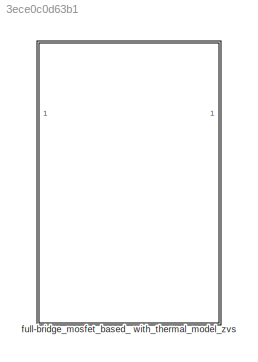
MODEL slx_3ece0c0d63b1
KIND library
CONFIG AbsTol = auto
CONFIG EnableMultiTasking = off
CONFIG FixedStep = auto
CONFIG MaxStep = auto
CONFIG MinStep = auto
CONFIG RelTol = 1e-3
CONFIG SampleTimeConstraint = Unconstrained
CONFIG SolverName = VariableStepAuto
CONFIG StartTime = 0.0
CONFIG StopTime = 10.0
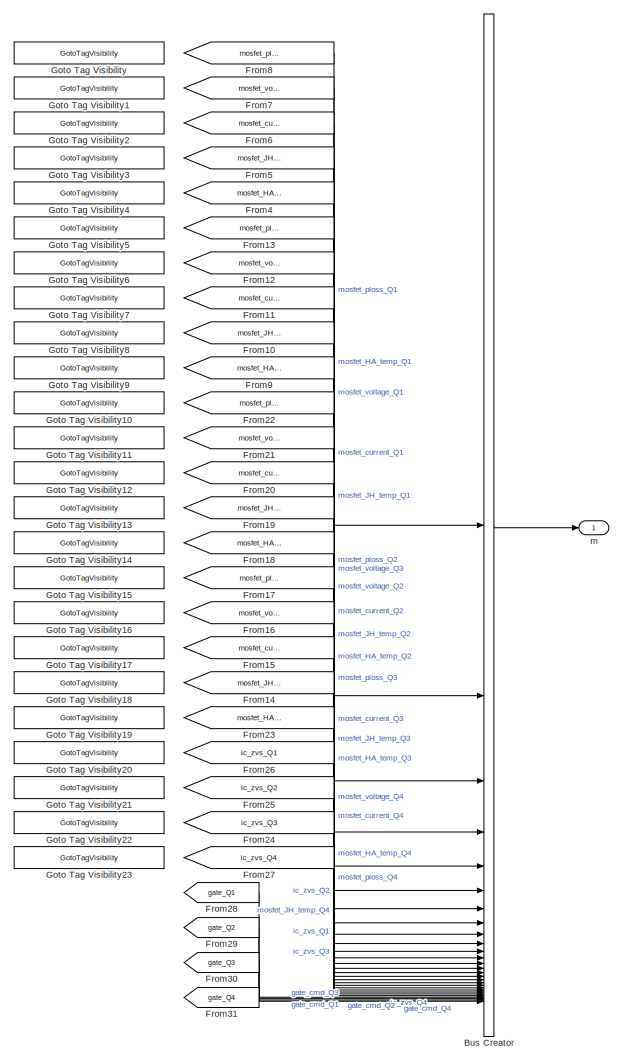
[diagram: full-bridge_mosfet_based_ with_thermal_model_zvs - part 1/2, right side, full height]
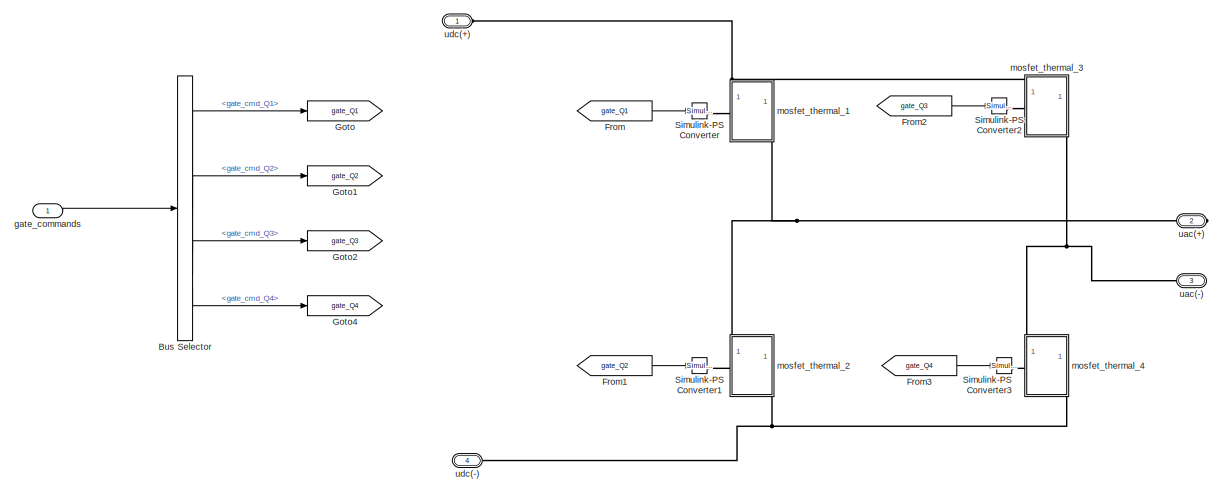
[diagram: full-bridge_mosfet_based_ with_thermal_model_zvs - part 2/2, top left region]
BLOCK [SubSystem] full-bridge_mosfet_based_ with_thermal_model_zvs
BLOCK [BusCreator] full-bridge_mosfet_based_ with_thermal_model_zvs/Bus Creator
  DisplayOption = bar
  InheritFromInputs = on
  Inputs = 28
BLOCK [BusSelector] full-bridge_mosfet_based_ with_thermal_model_zvs/Bus Selector
  OutputSignals = gate_cmd_Q1,gate_cmd_Q2,gate_cmd_Q3,gate_cmd_Q4
BLOCK [From] full-bridge_mosfet_based_ with_thermal_model_zvs/From
  GotoTag = gate_Q1
BLOCK [From] full-bridge_mosfet_based_ with_thermal_model_zvs/From1
  GotoTag = gate_Q2
BLOCK [From] full-bridge_mosfet_based_ with_thermal_model_zvs/From10
  GotoTag = mosfet_JH_temp_Q2
BLOCK [From] full-bridge_mosfet_based_ with_thermal_model_zvs/From11
  GotoTag = mosfet_current_Q2
BLOCK [From] full-bridge_mosfet_based_ with_thermal_model_zvs/From12
  GotoTag = mosfet_voltage_Q2
BLOCK [From] full-bridge_mosfet_based_ with_thermal_model_zvs/From13
  GotoTag = mosfet_ploss_Q2
BLOCK [From] full-bridge_mosfet_based_ with_thermal_model_zvs/From14
  GotoTag = mosfet_JH_temp_Q4
BLOCK [From] full-bridge_mosfet_based_ with_thermal_model_zvs/From15
  GotoTag = mosfet_current_Q4
BLOCK [From] full-bridge_mosfet_based_ with_thermal_model_zvs/From16
  GotoTag = mosfet_voltage_Q4
BLOCK [From] full-bridge_mosfet_based_ with_thermal_model_zvs/From17
  GotoTag = mosfet_ploss_Q4
BLOCK [From] full-bridge_mosfet_based_ with_thermal_model_zvs/From18
  GotoTag = mosfet_HA_temp_Q3
BLOCK [From] full-bridge_mosfet_based_ with_thermal_model_zvs/From19
  GotoTag = mosfet_JH_temp_Q3
BLOCK [From] full-bridge_mosfet_based_ with_thermal_model_zvs/From2
  GotoTag = gate_Q3
BLOCK [From] full-bridge_mosfet_based_ with_thermal_model_zvs/From20
  GotoTag = mosfet_current_Q3
BLOCK [From] full-bridge_mosfet_based_ with_thermal_model_zvs/From21
  GotoTag = mosfet_voltage_Q3
BLOCK [From] full-bridge_mosfet_based_ with_thermal_model_zvs/From22
  GotoTag = mosfet_ploss_Q3
BLOCK [From] full-bridge_mosfet_based_ with_thermal_model_zvs/From23
  GotoTag = mosfet_HA_temp_Q4
BLOCK [From] full-bridge_mosfet_based_ with_thermal_model_zvs/From24
  GotoTag = ic_zvs_Q3
  TagVisibility = scoped
BLOCK [From] full-bridge_mosfet_based_ with_thermal_model_zvs/From25
  GotoTag = ic_zvs_Q2
  TagVisibility = scoped
BLOCK [From] full-bridge_mosfet_based_ with_thermal_model_zvs/From26
  GotoTag = ic_zvs_Q1
  TagVisibility = scoped
BLOCK [From] full-bridge_mosfet_based_ with_thermal_model_zvs/From27
  GotoTag = ic_zvs_Q4
  TagVisibility = scoped
BLOCK [From] full-bridge_mosfet_based_ with_thermal_model_zvs/From28
  GotoTag = gate_Q1
BLOCK [From] full-bridge_mosfet_based_ with_thermal_model_zvs/From29
  GotoTag = gate_Q2
BLOCK [From] full-bridge_mosfet_based_ with_thermal_model_zvs/From3
  GotoTag = gate_Q4
BLOCK [From] full-bridge_mosfet_based_ with_thermal_model_zvs/From30
  GotoTag = gate_Q3
BLOCK [From] full-bridge_mosfet_based_ with_thermal_model_zvs/From31
  GotoTag = gate_Q4
BLOCK [From] full-bridge_mosfet_based_ with_thermal_model_zvs/From4
  GotoTag = mosfet_HA_temp_Q1
BLOCK [From] full-bridge_mosfet_based_ with_thermal_model_zvs/From5
  GotoTag = mosfet_JH_temp_Q1
BLOCK [From] full-bridge_mosfet_based_ with_thermal_model_zvs/From6
  GotoTag = mosfet_current_Q1
BLOCK [From] full-bridge_mosfet_based_ with_thermal_model_zvs/From7
  GotoTag = mosfet_voltage_Q1
BLOCK [From] full-bridge_mosfet_based_ with_thermal_model_zvs/From8
  GotoTag = mosfet_ploss_Q1
BLOCK [From] full-bridge_mosfet_based_ with_thermal_model_zvs/From9
  GotoTag = mosfet_HA_temp_Q2
BLOCK [Goto] full-bridge_mosfet_based_ with_thermal_model_zvs/Goto
  GotoTag = gate_Q1
BLOCK [GotoTagVisibility] full-bridge_mosfet_based_ with_thermal_model_zvs/Goto Tag Visibility
  GotoTag = mosfet_ploss_Q1
BLOCK [GotoTagVisibility] full-bridge_mosfet_based_ with_thermal_model_zvs/Goto Tag Visibility1
  GotoTag = mosfet_voltage_Q1
BLOCK [GotoTagVisibility] full-bridge_mosfet_based_ with_thermal_model_zvs/Goto Tag Visibility10
  GotoTag = mosfet_ploss_Q3
BLOCK [GotoTagVisibility] full-bridge_mosfet_based_ with_thermal_model_zvs/Goto Tag Visibility11
  GotoTag = mosfet_voltage_Q3
BLOCK [GotoTagVisibility] full-bridge_mosfet_based_ with_thermal_model_zvs/Goto Tag Visibility12
  GotoTag = mosfet_current_Q3
BLOCK [GotoTagVisibility] full-bridge_mosfet_based_ with_thermal_model_zvs/Goto Tag Visibility13
  GotoTag = mosfet_JH_temp_Q3
BLOCK [GotoTagVisibility] full-bridge_mosfet_based_ with_thermal_model_zvs/Goto Tag Visibility14
  GotoTag = mosfet_HA_temp_Q3
  NameLocation = top
BLOCK [GotoTagVisibility] full-bridge_mosfet_based_ with_thermal_model_zvs/Goto Tag Visibility15
  GotoTag = mosfet_ploss_Q4
BLOCK [GotoTagVisibility] full-bridge_mosfet_based_ with_thermal_model_zvs/Goto Tag Visibility16
  GotoTag = mosfet_voltage_Q4
BLOCK [GotoTagVisibility] full-bridge_mosfet_based_ with_thermal_model_zvs/Goto Tag Visibility17
  GotoTag = mosfet_current_Q4
BLOCK [GotoTagVisibility] full-bridge_mosfet_based_ with_thermal_model_zvs/Goto Tag Visibility18
  GotoTag = mosfet_JH_temp_Q4
BLOCK [GotoTagVisibility] full-bridge_mosfet_based_ with_thermal_model_zvs/Goto Tag Visibility19
  GotoTag = mosfet_HA_temp_Q4
  NameLocation = top
BLOCK [GotoTagVisibility] full-bridge_mosfet_based_ with_thermal_model_zvs/Goto Tag Visibility2
  GotoTag = mosfet_current_Q1
BLOCK [GotoTagVisibility] full-bridge_mosfet_based_ with_thermal_model_zvs/Goto Tag Visibility20
  GotoTag = ic_zvs_Q1
BLOCK [GotoTagVisibility] full-bridge_mosfet_based_ with_thermal_model_zvs/Goto Tag Visibility21
  GotoTag = ic_zvs_Q2
BLOCK [GotoTagVisibility] full-bridge_mosfet_based_ with_thermal_model_zvs/Goto Tag Visibility22
  GotoTag = ic_zvs_Q3
BLOCK [GotoTagVisibility] full-bridge_mosfet_based_ with_thermal_model_zvs/Goto Tag Visibility23
  GotoTag = ic_zvs_Q4
  NameLocation = top
BLOCK [GotoTagVisibility] full-bridge_mosfet_based_ with_thermal_model_zvs/Goto Tag Visibility3
  GotoTag = mosfet_JH_temp_Q1
BLOCK [GotoTagVisibility] full-bridge_mosfet_based_ with_thermal_model_zvs/Goto Tag Visibility4
  GotoTag = mosfet_HA_temp_Q1
BLOCK [GotoTagVisibility] full-bridge_mosfet_based_ with_thermal_model_zvs/Goto Tag Visibility5
  GotoTag = mosfet_ploss_Q2
BLOCK [GotoTagVisibility] full-bridge_mosfet_based_ with_thermal_model_zvs/Goto Tag Visibility6
  GotoTag = mosfet_voltage_Q2
BLOCK [GotoTagVisibility] full-bridge_mosfet_based_ with_thermal_model_zvs/Goto Tag Visibility7
  GotoTag = mosfet_current_Q2
BLOCK [GotoTagVisibility] full-bridge_mosfet_based_ with_thermal_model_zvs/Goto Tag Visibility8
  GotoTag = mosfet_JH_temp_Q2
BLOCK [GotoTagVisibility] full-bridge_mosfet_based_ with_thermal_model_zvs/Goto Tag Visibility9
  GotoTag = mosfet_HA_temp_Q2
  NameLocation = top
BLOCK [Goto] full-bridge_mosfet_based_ with_thermal_model_zvs/Goto1
  GotoTag = gate_Q2
BLOCK [Goto] full-bridge_mosfet_based_ with_thermal_model_zvs/Goto2
  GotoTag = gate_Q3
BLOCK [Goto] full-bridge_mosfet_based_ with_thermal_model_zvs/Goto4
  GotoTag = gate_Q4
BLOCK [Reference] full-bridge_mosfet_based_ with_thermal_model_zvs/Simulink-PS Converter  REF=nesl_utility/Simulink-PS
Converter
  SourceBlock = nesl_utility/Simulink-PS\nConverter
  SourceType = Simulink-PS\nConverter
BLOCK [Reference] full-bridge_mosfet_based_ with_thermal_model_zvs/Simulink-PS Converter1  REF=nesl_utility/Simulink-PS
Converter
  SourceBlock = nesl_utility/Simulink-PS\nConverter
  SourceType = Simulink-PS\nConverter
BLOCK [Reference] full-bridge_mosfet_based_ with_thermal_model_zvs/Simulink-PS Converter2  REF=nesl_utility/Simulink-PS
Converter
  SourceBlock = nesl_utility/Simulink-PS\nConverter
  SourceType = Simulink-PS\nConverter
BLOCK [Reference] full-bridge_mosfet_based_ with_thermal_model_zvs/Simulink-PS Converter3  REF=nesl_utility/Simulink-PS
Converter
  SourceBlock = nesl_utility/Simulink-PS\nConverter
  SourceType = Simulink-PS\nConverter
BLOCK [Inport] full-bridge_mosfet_based_ with_thermal_model_zvs/gate_commands
BLOCK [Outport] full-bridge_mosfet_based_ with_thermal_model_zvs/m
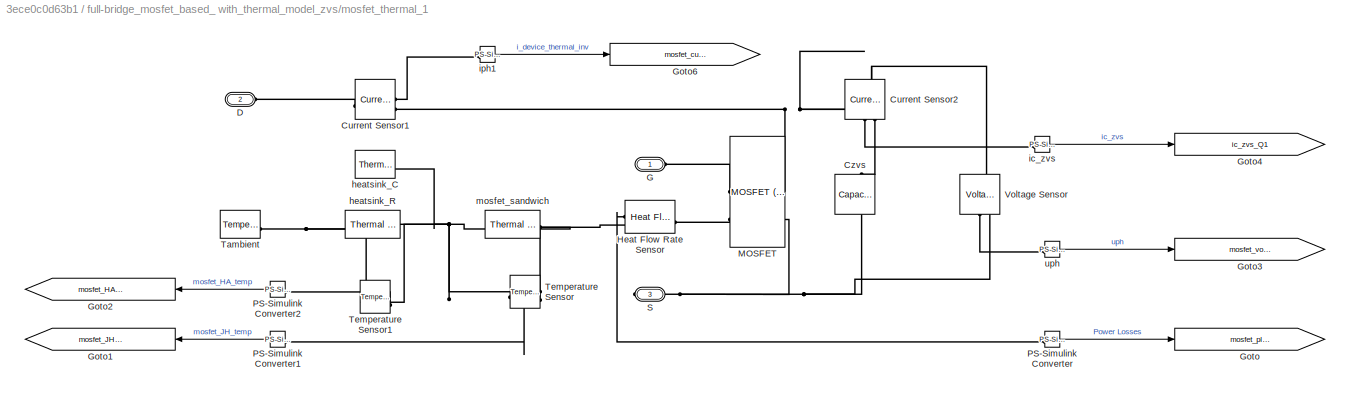
BLOCK [SubSystem] full-bridge_mosfet_based_ with_thermal_model_zvs/mosfet_thermal_1
  NameLocation = right
  PortSchema = {"entries":[{"content":{"sides":[{"content":{"connectorIds":["LConn1"]},"type":"ConnectorPlacement.EquallySpacedRectSide","uuid":"9277da8d-d460-43e6-8478-dd662f15d226"},{"content":{"connectorIds":[],"side":"RIGHT"},"type":"ConnectorPlacement.EquallySpacedRectSide","uuid":"a7ece396-f1d9-4f4f-a05b-db1fc65d6e1d"},{"content":{"connectorIds":["LConn2"],"side":"TOP"},"type":"ConnectorPlacement.EquallySp...<+397ch>  <repeated x4 — deduplicated; at blocks: mosfet_thermal_1, mosfet_thermal_2, mosfet_thermal_3, mosfet_thermal_4>
BLOCK [Reference] full-bridge_mosfet_based_ with_thermal_model_zvs/mosfet_thermal_1/Current Sensor1  REF=fl_lib/Electrical/Electrical Sensors/Current Sensor
  SourceBlock = fl_lib/Electrical/Electrical Sensors/Current Sensor
  SourceType = Current Sensor
BLOCK [Reference] full-bridge_mosfet_based_ with_thermal_model_zvs/mosfet_thermal_1/Current Sensor2  REF=fl_lib/Electrical/Electrical Sensors/Current Sensor
  NameLocation = left
  SourceBlock = fl_lib/Electrical/Electrical Sensors/Current Sensor
  SourceType = Current Sensor
BLOCK [Reference] full-bridge_mosfet_based_ with_thermal_model_zvs/mosfet_thermal_1/Czvs  REF=fl_lib/Electrical/Electrical Elements/Capacitor
  NameLocation = right
  SourceBlock = fl_lib/Electrical/Electrical Elements/Capacitor
  SourceType = Capacitor
BLOCK [PMIOPort] full-bridge_mosfet_based_ with_thermal_model_zvs/mosfet_thermal_1/D
  Port = 2
  Side = Left
BLOCK [PMIOPort] full-bridge_mosfet_based_ with_thermal_model_zvs/mosfet_thermal_1/G
  NameLocation = top
  Side = Left
BLOCK [Goto] full-bridge_mosfet_based_ with_thermal_model_zvs/mosfet_thermal_1/Goto
  GotoTag = mosfet_ploss_Q1
  TagVisibility = scoped
BLOCK [Goto] full-bridge_mosfet_based_ with_thermal_model_zvs/mosfet_thermal_1/Goto1
  GotoTag = mosfet_JH_temp_Q1
  NameLocation = top
  TagVisibility = scoped
BLOCK [Goto] full-bridge_mosfet_based_ with_thermal_model_zvs/mosfet_thermal_1/Goto2
  GotoTag = mosfet_HA_temp_Q1
  NameLocation = top
  TagVisibility = scoped
BLOCK [Goto] full-bridge_mosfet_based_ with_thermal_model_zvs/mosfet_thermal_1/Goto3
  GotoTag = mosfet_voltage_Q1
  TagVisibility = scoped
BLOCK [Goto] full-bridge_mosfet_based_ with_thermal_model_zvs/mosfet_thermal_1/Goto4
  GotoTag = ic_zvs_Q1
  TagVisibility = scoped
BLOCK [Goto] full-bridge_mosfet_based_ with_thermal_model_zvs/mosfet_thermal_1/Goto6
  GotoTag = mosfet_current_Q1
  TagVisibility = scoped
BLOCK [Reference] full-bridge_mosfet_based_ with_thermal_model_zvs/mosfet_thermal_1/Heat Flow Rate Sensor  REF=fl_lib/Thermal/Thermal Sensors/Heat Flow Rate
Sensor
  SourceBlock = fl_lib/Thermal/Thermal Sensors/Heat Flow Rate\nSensor
  SourceType = Heat Flow Rate\nSensor
BLOCK [Reference] full-bridge_mosfet_based_ with_thermal_model_zvs/mosfet_thermal_1/MOSFET  REF=ee_lib/Semiconductors &
Converters/MOSFET
(Ideal,
Switching)
  SourceBlock = ee_lib/Semiconductors &\nConverters/MOSFET\n(Ideal,\nSwitching)
  SourceType = MOSFET\n(Ideal,\nSwitching)
BLOCK [Reference] full-bridge_mosfet_based_ with_thermal_model_zvs/mosfet_thermal_1/PS-Simulink Converter  REF=nesl_utility/PS-Simulink
Converter
  SourceBlock = nesl_utility/PS-Simulink\nConverter
  SourceType = PS-Simulink\nConverter
BLOCK [Reference] full-bridge_mosfet_based_ with_thermal_model_zvs/mosfet_thermal_1/PS-Simulink Converter1  REF=nesl_utility/PS-Simulink
Converter
  SourceBlock = nesl_utility/PS-Simulink\nConverter
  SourceType = PS-Simulink\nConverter
BLOCK [Reference] full-bridge_mosfet_based_ with_thermal_model_zvs/mosfet_thermal_1/PS-Simulink Converter2  REF=nesl_utility/PS-Simulink
Converter
  NameLocation = right
  SourceBlock = nesl_utility/PS-Simulink\nConverter
  SourceType = PS-Simulink\nConverter
BLOCK [PMIOPort] full-bridge_mosfet_based_ with_thermal_model_zvs/mosfet_thermal_1/S
  Port = 3
  Side = Right
BLOCK [Reference] full-bridge_mosfet_based_ with_thermal_model_zvs/mosfet_thermal_1/Tambient  REF=fl_lib/Thermal/Thermal Sources/Temperature Source
  SourceBlock = fl_lib/Thermal/Thermal Sources/Temperature Source
  SourceType = Temperature Source
BLOCK [Reference] full-bridge_mosfet_based_ with_thermal_model_zvs/mosfet_thermal_1/Temperature Sensor  REF=fl_lib/Thermal/Thermal Sensors/Temperature Sensor
  NameLocation = top
  SourceBlock = fl_lib/Thermal/Thermal Sensors/Temperature Sensor
  SourceType = Temperature Sensor
BLOCK [Reference] full-bridge_mosfet_based_ with_thermal_model_zvs/mosfet_thermal_1/Temperature Sensor1  REF=fl_lib/Thermal/Thermal Sensors/Temperature Sensor
  NameLocation = top
  SourceBlock = fl_lib/Thermal/Thermal Sensors/Temperature Sensor
  SourceType = Temperature Sensor
BLOCK [Reference] full-bridge_mosfet_based_ with_thermal_model_zvs/mosfet_thermal_1/Voltage Sensor  REF=fl_lib/Electrical/Electrical Sensors/Voltage Sensor
  NameLocation = right
  SourceBlock = fl_lib/Electrical/Electrical Sensors/Voltage Sensor
  SourceType = Voltage Sensor
BLOCK [Reference] full-bridge_mosfet_based_ with_thermal_model_zvs/mosfet_thermal_1/heatsink_C  REF=fl_lib/Thermal/Thermal Elements/Thermal Mass
  SourceBlock = fl_lib/Thermal/Thermal Elements/Thermal Mass
  SourceType = Thermal Mass
BLOCK [Reference] full-bridge_mosfet_based_ with_thermal_model_zvs/mosfet_thermal_1/heatsink_R  REF=fl_lib/Thermal/Thermal Elements/Thermal Resistance
  SourceBlock = fl_lib/Thermal/Thermal Elements/Thermal Resistance
  SourceType = Thermal Resistance
BLOCK [Reference] full-bridge_mosfet_based_ with_thermal_model_zvs/mosfet_thermal_1/ic_zvs  REF=nesl_utility/PS-Simulink
Converter
  SourceBlock = nesl_utility/PS-Simulink\nConverter
  SourceType = PS-Simulink\nConverter
BLOCK [Reference] full-bridge_mosfet_based_ with_thermal_model_zvs/mosfet_thermal_1/iph1  REF=nesl_utility/PS-Simulink
Converter
  SourceBlock = nesl_utility/PS-Simulink\nConverter
  SourceType = PS-Simulink\nConverter
BLOCK [Reference] full-bridge_mosfet_based_ with_thermal_model_zvs/mosfet_thermal_1/mosfet_sandwich  REF=fl_lib/Thermal/Thermal Elements/Thermal Resistance
  SourceBlock = fl_lib/Thermal/Thermal Elements/Thermal Resistance
  SourceType = Thermal Resistance
BLOCK [Reference] full-bridge_mosfet_based_ with_thermal_model_zvs/mosfet_thermal_1/uph  REF=nesl_utility/PS-Simulink
Converter
  SourceBlock = nesl_utility/PS-Simulink\nConverter
  SourceType = PS-Simulink\nConverter
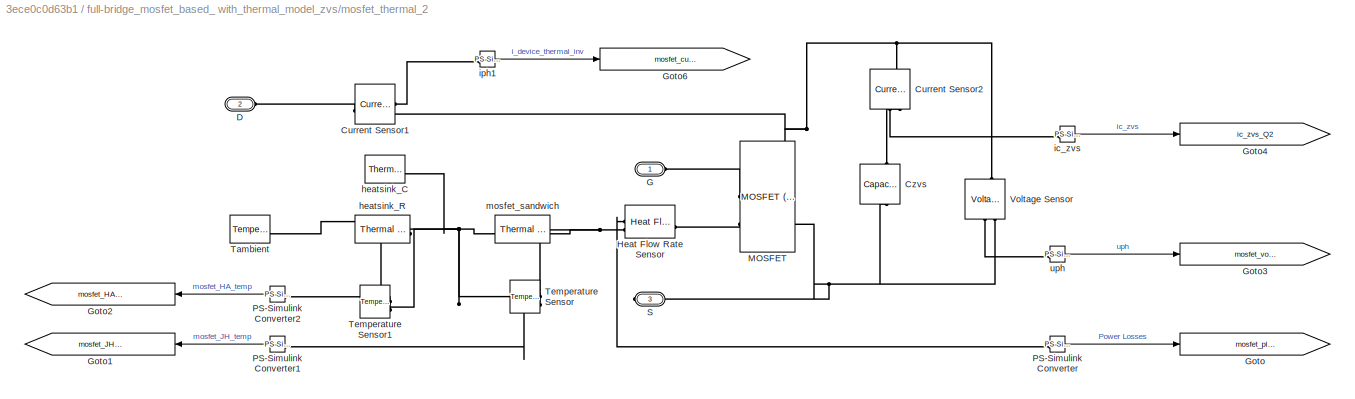
BLOCK [SubSystem] full-bridge_mosfet_based_ with_thermal_model_zvs/mosfet_thermal_2
  NameLocation = right
BLOCK [Reference] full-bridge_mosfet_based_ with_thermal_model_zvs/mosfet_thermal_2/Current Sensor1  REF=fl_lib/Electrical/Electrical Sensors/Current Sensor
  SourceBlock = fl_lib/Electrical/Electrical Sensors/Current Sensor
  SourceType = Current Sensor
BLOCK [Reference] full-bridge_mosfet_based_ with_thermal_model_zvs/mosfet_thermal_2/Current Sensor2  REF=fl_lib/Electrical/Electrical Sensors/Current Sensor
  NameLocation = left
  SourceBlock = fl_lib/Electrical/Electrical Sensors/Current Sensor
  SourceType = Current Sensor
BLOCK [Reference] full-bridge_mosfet_based_ with_thermal_model_zvs/mosfet_thermal_2/Czvs  REF=fl_lib/Electrical/Electrical Elements/Capacitor
  NameLocation = right
  SourceBlock = fl_lib/Electrical/Electrical Elements/Capacitor
  SourceType = Capacitor
BLOCK [PMIOPort] full-bridge_mosfet_based_ with_thermal_model_zvs/mosfet_thermal_2/D
  Port = 2
  Side = Left
BLOCK [PMIOPort] full-bridge_mosfet_based_ with_thermal_model_zvs/mosfet_thermal_2/G
  NameLocation = top
  Side = Left
BLOCK [Goto] full-bridge_mosfet_based_ with_thermal_model_zvs/mosfet_thermal_2/Goto
  GotoTag = mosfet_ploss_Q2
  TagVisibility = scoped
BLOCK [Goto] full-bridge_mosfet_based_ with_thermal_model_zvs/mosfet_thermal_2/Goto1
  GotoTag = mosfet_JH_temp_Q2
  NameLocation = top
  TagVisibility = scoped
BLOCK [Goto] full-bridge_mosfet_based_ with_thermal_model_zvs/mosfet_thermal_2/Goto2
  GotoTag = mosfet_HA_temp_Q2
  NameLocation = top
  TagVisibility = scoped
BLOCK [Goto] full-bridge_mosfet_based_ with_thermal_model_zvs/mosfet_thermal_2/Goto3
  GotoTag = mosfet_voltage_Q2
  TagVisibility = scoped
BLOCK [Goto] full-bridge_mosfet_based_ with_thermal_model_zvs/mosfet_thermal_2/Goto4
  GotoTag = ic_zvs_Q2
  TagVisibility = scoped
BLOCK [Goto] full-bridge_mosfet_based_ with_thermal_model_zvs/mosfet_thermal_2/Goto6
  GotoTag = mosfet_current_Q2
  TagVisibility = scoped
BLOCK [Reference] full-bridge_mosfet_based_ with_thermal_model_zvs/mosfet_thermal_2/Heat Flow Rate Sensor  REF=fl_lib/Thermal/Thermal Sensors/Heat Flow Rate
Sensor
  SourceBlock = fl_lib/Thermal/Thermal Sensors/Heat Flow Rate\nSensor
  SourceType = Heat Flow Rate\nSensor
BLOCK [Reference] full-bridge_mosfet_based_ with_thermal_model_zvs/mosfet_thermal_2/MOSFET  REF=ee_lib/Semiconductors &
Converters/MOSFET
(Ideal,
Switching)
  SourceBlock = ee_lib/Semiconductors &\nConverters/MOSFET\n(Ideal,\nSwitching)
  SourceType = MOSFET\n(Ideal,\nSwitching)
BLOCK [Reference] full-bridge_mosfet_based_ with_thermal_model_zvs/mosfet_thermal_2/PS-Simulink Converter  REF=nesl_utility/PS-Simulink
Converter
  SourceBlock = nesl_utility/PS-Simulink\nConverter
  SourceType = PS-Simulink\nConverter
BLOCK [Reference] full-bridge_mosfet_based_ with_thermal_model_zvs/mosfet_thermal_2/PS-Simulink Converter1  REF=nesl_utility/PS-Simulink
Converter
  SourceBlock = nesl_utility/PS-Simulink\nConverter
  SourceType = PS-Simulink\nConverter
BLOCK [Reference] full-bridge_mosfet_based_ with_thermal_model_zvs/mosfet_thermal_2/PS-Simulink Converter2  REF=nesl_utility/PS-Simulink
Converter
  NameLocation = right
  SourceBlock = nesl_utility/PS-Simulink\nConverter
  SourceType = PS-Simulink\nConverter
BLOCK [PMIOPort] full-bridge_mosfet_based_ with_thermal_model_zvs/mosfet_thermal_2/S
  Port = 3
  Side = Right
BLOCK [Reference] full-bridge_mosfet_based_ with_thermal_model_zvs/mosfet_thermal_2/Tambient  REF=fl_lib/Thermal/Thermal Sources/Temperature Source
  SourceBlock = fl_lib/Thermal/Thermal Sources/Temperature Source
  SourceType = Temperature Source
BLOCK [Reference] full-bridge_mosfet_based_ with_thermal_model_zvs/mosfet_thermal_2/Temperature Sensor  REF=fl_lib/Thermal/Thermal Sensors/Temperature Sensor
  NameLocation = top
  SourceBlock = fl_lib/Thermal/Thermal Sensors/Temperature Sensor
  SourceType = Temperature Sensor
BLOCK [Reference] full-bridge_mosfet_based_ with_thermal_model_zvs/mosfet_thermal_2/Temperature Sensor1  REF=fl_lib/Thermal/Thermal Sensors/Temperature Sensor
  NameLocation = top
  SourceBlock = fl_lib/Thermal/Thermal Sensors/Temperature Sensor
  SourceType = Temperature Sensor
BLOCK [Reference] full-bridge_mosfet_based_ with_thermal_model_zvs/mosfet_thermal_2/Voltage Sensor  REF=fl_lib/Electrical/Electrical Sensors/Voltage Sensor
  NameLocation = right
  SourceBlock = fl_lib/Electrical/Electrical Sensors/Voltage Sensor
  SourceType = Voltage Sensor
BLOCK [Reference] full-bridge_mosfet_based_ with_thermal_model_zvs/mosfet_thermal_2/heatsink_C  REF=fl_lib/Thermal/Thermal Elements/Thermal Mass
  SourceBlock = fl_lib/Thermal/Thermal Elements/Thermal Mass
  SourceType = Thermal Mass
BLOCK [Reference] full-bridge_mosfet_based_ with_thermal_model_zvs/mosfet_thermal_2/heatsink_R  REF=fl_lib/Thermal/Thermal Elements/Thermal Resistance
  SourceBlock = fl_lib/Thermal/Thermal Elements/Thermal Resistance
  SourceType = Thermal Resistance
BLOCK [Reference] full-bridge_mosfet_based_ with_thermal_model_zvs/mosfet_thermal_2/ic_zvs  REF=nesl_utility/PS-Simulink
Converter
  SourceBlock = nesl_utility/PS-Simulink\nConverter
  SourceType = PS-Simulink\nConverter
BLOCK [Reference] full-bridge_mosfet_based_ with_thermal_model_zvs/mosfet_thermal_2/iph1  REF=nesl_utility/PS-Simulink
Converter
  SourceBlock = nesl_utility/PS-Simulink\nConverter
  SourceType = PS-Simulink\nConverter
BLOCK [Reference] full-bridge_mosfet_based_ with_thermal_model_zvs/mosfet_thermal_2/mosfet_sandwich  REF=fl_lib/Thermal/Thermal Elements/Thermal Resistance
  SourceBlock = fl_lib/Thermal/Thermal Elements/Thermal Resistance
  SourceType = Thermal Resistance
BLOCK [Reference] full-bridge_mosfet_based_ with_thermal_model_zvs/mosfet_thermal_2/uph  REF=nesl_utility/PS-Simulink
Converter
  SourceBlock = nesl_utility/PS-Simulink\nConverter
  SourceType = PS-Simulink\nConverter
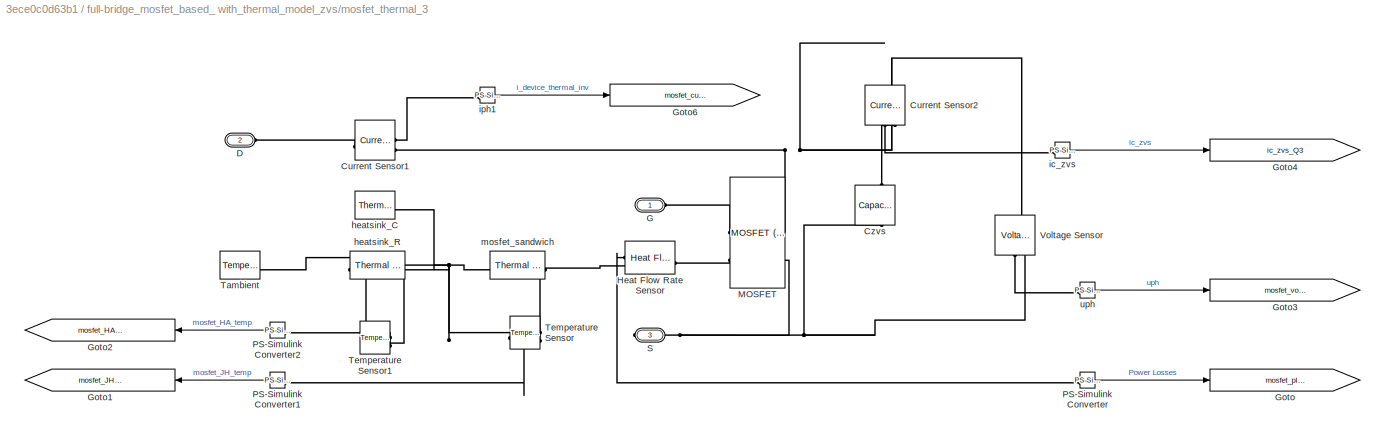
BLOCK [SubSystem] full-bridge_mosfet_based_ with_thermal_model_zvs/mosfet_thermal_3
  NameLocation = right
BLOCK [Reference] full-bridge_mosfet_based_ with_thermal_model_zvs/mosfet_thermal_3/Current Sensor1  REF=fl_lib/Electrical/Electrical Sensors/Current Sensor
  SourceBlock = fl_lib/Electrical/Electrical Sensors/Current Sensor
  SourceType = Current Sensor
BLOCK [Reference] full-bridge_mosfet_based_ with_thermal_model_zvs/mosfet_thermal_3/Current Sensor2  REF=fl_lib/Electrical/Electrical Sensors/Current Sensor
  NameLocation = left
  SourceBlock = fl_lib/Electrical/Electrical Sensors/Current Sensor
  SourceType = Current Sensor
BLOCK [Reference] full-bridge_mosfet_based_ with_thermal_model_zvs/mosfet_thermal_3/Czvs  REF=fl_lib/Electrical/Electrical Elements/Capacitor
  NameLocation = right
  SourceBlock = fl_lib/Electrical/Electrical Elements/Capacitor
  SourceType = Capacitor
BLOCK [PMIOPort] full-bridge_mosfet_based_ with_thermal_model_zvs/mosfet_thermal_3/D
  Port = 2
  Side = Left
BLOCK [PMIOPort] full-bridge_mosfet_based_ with_thermal_model_zvs/mosfet_thermal_3/G
  NameLocation = top
  Side = Left
BLOCK [Goto] full-bridge_mosfet_based_ with_thermal_model_zvs/mosfet_thermal_3/Goto
  GotoTag = mosfet_ploss_Q3
  TagVisibility = scoped
BLOCK [Goto] full-bridge_mosfet_based_ with_thermal_model_zvs/mosfet_thermal_3/Goto1
  GotoTag = mosfet_JH_temp_Q3
  NameLocation = top
  TagVisibility = scoped
BLOCK [Goto] full-bridge_mosfet_based_ with_thermal_model_zvs/mosfet_thermal_3/Goto2
  GotoTag = mosfet_HA_temp_Q3
  NameLocation = top
  TagVisibility = scoped
BLOCK [Goto] full-bridge_mosfet_based_ with_thermal_model_zvs/mosfet_thermal_3/Goto3
  GotoTag = mosfet_voltage_Q3
  TagVisibility = scoped
BLOCK [Goto] full-bridge_mosfet_based_ with_thermal_model_zvs/mosfet_thermal_3/Goto4
  GotoTag = ic_zvs_Q3
  TagVisibility = scoped
BLOCK [Goto] full-bridge_mosfet_based_ with_thermal_model_zvs/mosfet_thermal_3/Goto6
  GotoTag = mosfet_current_Q3
  TagVisibility = scoped
BLOCK [Reference] full-bridge_mosfet_based_ with_thermal_model_zvs/mosfet_thermal_3/Heat Flow Rate Sensor  REF=fl_lib/Thermal/Thermal Sensors/Heat Flow Rate
Sensor
  SourceBlock = fl_lib/Thermal/Thermal Sensors/Heat Flow Rate\nSensor
  SourceType = Heat Flow Rate\nSensor
BLOCK [Reference] full-bridge_mosfet_based_ with_thermal_model_zvs/mosfet_thermal_3/MOSFET  REF=ee_lib/Semiconductors &
Converters/MOSFET
(Ideal,
Switching)
  SourceBlock = ee_lib/Semiconductors &\nConverters/MOSFET\n(Ideal,\nSwitching)
  SourceType = MOSFET\n(Ideal,\nSwitching)
BLOCK [Reference] full-bridge_mosfet_based_ with_thermal_model_zvs/mosfet_thermal_3/PS-Simulink Converter  REF=nesl_utility/PS-Simulink
Converter
  SourceBlock = nesl_utility/PS-Simulink\nConverter
  SourceType = PS-Simulink\nConverter
BLOCK [Reference] full-bridge_mosfet_based_ with_thermal_model_zvs/mosfet_thermal_3/PS-Simulink Converter1  REF=nesl_utility/PS-Simulink
Converter
  SourceBlock = nesl_utility/PS-Simulink\nConverter
  SourceType = PS-Simulink\nConverter
BLOCK [Reference] full-bridge_mosfet_based_ with_thermal_model_zvs/mosfet_thermal_3/PS-Simulink Converter2  REF=nesl_utility/PS-Simulink
Converter
  NameLocation = right
  SourceBlock = nesl_utility/PS-Simulink\nConverter
  SourceType = PS-Simulink\nConverter
BLOCK [PMIOPort] full-bridge_mosfet_based_ with_thermal_model_zvs/mosfet_thermal_3/S
  Port = 3
  Side = Right
BLOCK [Reference] full-bridge_mosfet_based_ with_thermal_model_zvs/mosfet_thermal_3/Tambient  REF=fl_lib/Thermal/Thermal Sources/Temperature Source
  SourceBlock = fl_lib/Thermal/Thermal Sources/Temperature Source
  SourceType = Temperature Source
BLOCK [Reference] full-bridge_mosfet_based_ with_thermal_model_zvs/mosfet_thermal_3/Temperature Sensor  REF=fl_lib/Thermal/Thermal Sensors/Temperature Sensor
  NameLocation = top
  SourceBlock = fl_lib/Thermal/Thermal Sensors/Temperature Sensor
  SourceType = Temperature Sensor
BLOCK [Reference] full-bridge_mosfet_based_ with_thermal_model_zvs/mosfet_thermal_3/Temperature Sensor1  REF=fl_lib/Thermal/Thermal Sensors/Temperature Sensor
  NameLocation = top
  SourceBlock = fl_lib/Thermal/Thermal Sensors/Temperature Sensor
  SourceType = Temperature Sensor
BLOCK [Reference] full-bridge_mosfet_based_ with_thermal_model_zvs/mosfet_thermal_3/Voltage Sensor  REF=fl_lib/Electrical/Electrical Sensors/Voltage Sensor
  NameLocation = right
  SourceBlock = fl_lib/Electrical/Electrical Sensors/Voltage Sensor
  SourceType = Voltage Sensor
BLOCK [Reference] full-bridge_mosfet_based_ with_thermal_model_zvs/mosfet_thermal_3/heatsink_C  REF=fl_lib/Thermal/Thermal Elements/Thermal Mass
  SourceBlock = fl_lib/Thermal/Thermal Elements/Thermal Mass
  SourceType = Thermal Mass
BLOCK [Reference] full-bridge_mosfet_based_ with_thermal_model_zvs/mosfet_thermal_3/heatsink_R  REF=fl_lib/Thermal/Thermal Elements/Thermal Resistance
  SourceBlock = fl_lib/Thermal/Thermal Elements/Thermal Resistance
  SourceType = Thermal Resistance
BLOCK [Reference] full-bridge_mosfet_based_ with_thermal_model_zvs/mosfet_thermal_3/ic_zvs  REF=nesl_utility/PS-Simulink
Converter
  SourceBlock = nesl_utility/PS-Simulink\nConverter
  SourceType = PS-Simulink\nConverter
BLOCK [Reference] full-bridge_mosfet_based_ with_thermal_model_zvs/mosfet_thermal_3/iph1  REF=nesl_utility/PS-Simulink
Converter
  SourceBlock = nesl_utility/PS-Simulink\nConverter
  SourceType = PS-Simulink\nConverter
BLOCK [Reference] full-bridge_mosfet_based_ with_thermal_model_zvs/mosfet_thermal_3/mosfet_sandwich  REF=fl_lib/Thermal/Thermal Elements/Thermal Resistance
  SourceBlock = fl_lib/Thermal/Thermal Elements/Thermal Resistance
  SourceType = Thermal Resistance
BLOCK [Reference] full-bridge_mosfet_based_ with_thermal_model_zvs/mosfet_thermal_3/uph  REF=nesl_utility/PS-Simulink
Converter
  SourceBlock = nesl_utility/PS-Simulink\nConverter
  SourceType = PS-Simulink\nConverter
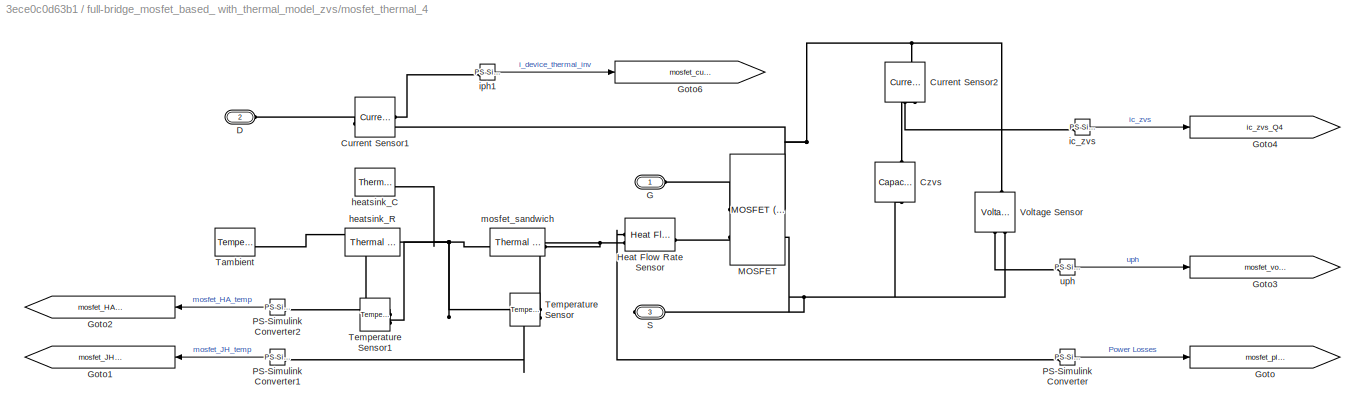
BLOCK [SubSystem] full-bridge_mosfet_based_ with_thermal_model_zvs/mosfet_thermal_4
  NameLocation = right
BLOCK [Reference] full-bridge_mosfet_based_ with_thermal_model_zvs/mosfet_thermal_4/Current Sensor1  REF=fl_lib/Electrical/Electrical Sensors/Current Sensor
  SourceBlock = fl_lib/Electrical/Electrical Sensors/Current Sensor
  SourceType = Current Sensor
BLOCK [Reference] full-bridge_mosfet_based_ with_thermal_model_zvs/mosfet_thermal_4/Current Sensor2  REF=fl_lib/Electrical/Electrical Sensors/Current Sensor
  NameLocation = left
  SourceBlock = fl_lib/Electrical/Electrical Sensors/Current Sensor
  SourceType = Current Sensor
BLOCK [Reference] full-bridge_mosfet_based_ with_thermal_model_zvs/mosfet_thermal_4/Czvs  REF=fl_lib/Electrical/Electrical Elements/Capacitor
  NameLocation = right
  SourceBlock = fl_lib/Electrical/Electrical Elements/Capacitor
  SourceType = Capacitor
BLOCK [PMIOPort] full-bridge_mosfet_based_ with_thermal_model_zvs/mosfet_thermal_4/D
  Port = 2
  Side = Left
BLOCK [PMIOPort] full-bridge_mosfet_based_ with_thermal_model_zvs/mosfet_thermal_4/G
  NameLocation = top
  Side = Left
BLOCK [Goto] full-bridge_mosfet_based_ with_thermal_model_zvs/mosfet_thermal_4/Goto
  GotoTag = mosfet_ploss_Q4
  TagVisibility = scoped
BLOCK [Goto] full-bridge_mosfet_based_ with_thermal_model_zvs/mosfet_thermal_4/Goto1
  GotoTag = mosfet_JH_temp_Q4
  NameLocation = top
  TagVisibility = scoped
BLOCK [Goto] full-bridge_mosfet_based_ with_thermal_model_zvs/mosfet_thermal_4/Goto2
  GotoTag = mosfet_HA_temp_Q4
  NameLocation = top
  TagVisibility = scoped
BLOCK [Goto] full-bridge_mosfet_based_ with_thermal_model_zvs/mosfet_thermal_4/Goto3
  GotoTag = mosfet_voltage_Q4
  TagVisibility = scoped
BLOCK [Goto] full-bridge_mosfet_based_ with_thermal_model_zvs/mosfet_thermal_4/Goto4
  GotoTag = ic_zvs_Q4
  TagVisibility = scoped
BLOCK [Goto] full-bridge_mosfet_based_ with_thermal_model_zvs/mosfet_thermal_4/Goto6
  GotoTag = mosfet_current_Q4
  TagVisibility = scoped
BLOCK [Reference] full-bridge_mosfet_based_ with_thermal_model_zvs/mosfet_thermal_4/Heat Flow Rate Sensor  REF=fl_lib/Thermal/Thermal Sensors/Heat Flow Rate
Sensor
  SourceBlock = fl_lib/Thermal/Thermal Sensors/Heat Flow Rate\nSensor
  SourceType = Heat Flow Rate\nSensor
BLOCK [Reference] full-bridge_mosfet_based_ with_thermal_model_zvs/mosfet_thermal_4/MOSFET  REF=ee_lib/Semiconductors &
Converters/MOSFET
(Ideal,
Switching)
  SourceBlock = ee_lib/Semiconductors &\nConverters/MOSFET\n(Ideal,\nSwitching)
  SourceType = MOSFET\n(Ideal,\nSwitching)
BLOCK [Reference] full-bridge_mosfet_based_ with_thermal_model_zvs/mosfet_thermal_4/PS-Simulink Converter  REF=nesl_utility/PS-Simulink
Converter
  SourceBlock = nesl_utility/PS-Simulink\nConverter
  SourceType = PS-Simulink\nConverter
BLOCK [Reference] full-bridge_mosfet_based_ with_thermal_model_zvs/mosfet_thermal_4/PS-Simulink Converter1  REF=nesl_utility/PS-Simulink
Converter
  SourceBlock = nesl_utility/PS-Simulink\nConverter
  SourceType = PS-Simulink\nConverter
BLOCK [Reference] full-bridge_mosfet_based_ with_thermal_model_zvs/mosfet_thermal_4/PS-Simulink Converter2  REF=nesl_utility/PS-Simulink
Converter
  NameLocation = right
  SourceBlock = nesl_utility/PS-Simulink\nConverter
  SourceType = PS-Simulink\nConverter
BLOCK [PMIOPort] full-bridge_mosfet_based_ with_thermal_model_zvs/mosfet_thermal_4/S
  Port = 3
  Side = Right
BLOCK [Reference] full-bridge_mosfet_based_ with_thermal_model_zvs/mosfet_thermal_4/Tambient  REF=fl_lib/Thermal/Thermal Sources/Temperature Source
  SourceBlock = fl_lib/Thermal/Thermal Sources/Temperature Source
  SourceType = Temperature Source
BLOCK [Reference] full-bridge_mosfet_based_ with_thermal_model_zvs/mosfet_thermal_4/Temperature Sensor  REF=fl_lib/Thermal/Thermal Sensors/Temperature Sensor
  NameLocation = top
  SourceBlock = fl_lib/Thermal/Thermal Sensors/Temperature Sensor
  SourceType = Temperature Sensor
BLOCK [Reference] full-bridge_mosfet_based_ with_thermal_model_zvs/mosfet_thermal_4/Temperature Sensor1  REF=fl_lib/Thermal/Thermal Sensors/Temperature Sensor
  NameLocation = top
  SourceBlock = fl_lib/Thermal/Thermal Sensors/Temperature Sensor
  SourceType = Temperature Sensor
BLOCK [Reference] full-bridge_mosfet_based_ with_thermal_model_zvs/mosfet_thermal_4/Voltage Sensor  REF=fl_lib/Electrical/Electrical Sensors/Voltage Sensor
  NameLocation = right
  SourceBlock = fl_lib/Electrical/Electrical Sensors/Voltage Sensor
  SourceType = Voltage Sensor
BLOCK [Reference] full-bridge_mosfet_based_ with_thermal_model_zvs/mosfet_thermal_4/heatsink_C  REF=fl_lib/Thermal/Thermal Elements/Thermal Mass
  SourceBlock = fl_lib/Thermal/Thermal Elements/Thermal Mass
  SourceType = Thermal Mass
BLOCK [Reference] full-bridge_mosfet_based_ with_thermal_model_zvs/mosfet_thermal_4/heatsink_R  REF=fl_lib/Thermal/Thermal Elements/Thermal Resistance
  SourceBlock = fl_lib/Thermal/Thermal Elements/Thermal Resistance
  SourceType = Thermal Resistance
BLOCK [Reference] full-bridge_mosfet_based_ with_thermal_model_zvs/mosfet_thermal_4/ic_zvs  REF=nesl_utility/PS-Simulink
Converter
  SourceBlock = nesl_utility/PS-Simulink\nConverter
  SourceType = PS-Simulink\nConverter
BLOCK [Reference] full-bridge_mosfet_based_ with_thermal_model_zvs/mosfet_thermal_4/iph1  REF=nesl_utility/PS-Simulink
Converter
  SourceBlock = nesl_utility/PS-Simulink\nConverter
  SourceType = PS-Simulink\nConverter
BLOCK [Reference] full-bridge_mosfet_based_ with_thermal_model_zvs/mosfet_thermal_4/mosfet_sandwich  REF=fl_lib/Thermal/Thermal Elements/Thermal Resistance
  SourceBlock = fl_lib/Thermal/Thermal Elements/Thermal Resistance
  SourceType = Thermal Resistance
BLOCK [Reference] full-bridge_mosfet_based_ with_thermal_model_zvs/mosfet_thermal_4/uph  REF=nesl_utility/PS-Simulink
Converter
  SourceBlock = nesl_utility/PS-Simulink\nConverter
  SourceType = PS-Simulink\nConverter
BLOCK [PMIOPort] full-bridge_mosfet_based_ with_thermal_model_zvs/uac(+)
  Port = 2
  Side = Right
BLOCK [PMIOPort] full-bridge_mosfet_based_ with_thermal_model_zvs/uac(-)
  Port = 3
  Side = Right
BLOCK [PMIOPort] full-bridge_mosfet_based_ with_thermal_model_zvs/udc(+)
  Side = Left
BLOCK [PMIOPort] full-bridge_mosfet_based_ with_thermal_model_zvs/udc(-)
  Port = 4
  Side = Left
LINE full-bridge_mosfet_based_ with_thermal_model_zvs/Bus Creator:1 -> full-bridge_mosfet_based_ with_thermal_model_zvs/m:1
LINE full-bridge_mosfet_based_ with_thermal_model_zvs/Bus Selector:1 -> full-bridge_mosfet_based_ with_thermal_model_zvs/Goto:1
LINE full-bridge_mosfet_based_ with_thermal_model_zvs/Bus Selector:2 -> full-bridge_mosfet_based_ with_thermal_model_zvs/Goto1:1
LINE full-bridge_mosfet_based_ with_thermal_model_zvs/Bus Selector:3 -> full-bridge_mosfet_based_ with_thermal_model_zvs/Goto2:1
LINE full-bridge_mosfet_based_ with_thermal_model_zvs/Bus Selector:4 -> full-bridge_mosfet_based_ with_thermal_model_zvs/Goto4:1
LINE full-bridge_mosfet_based_ with_thermal_model_zvs/From10:1 -> full-bridge_mosfet_based_ with_thermal_model_zvs/Bus Creator:9
LINE full-bridge_mosfet_based_ with_thermal_model_zvs/From11:1 -> full-bridge_mosfet_based_ with_thermal_model_zvs/Bus Creator:8
LINE full-bridge_mosfet_based_ with_thermal_model_zvs/From12:1 -> full-bridge_mosfet_based_ with_thermal_model_zvs/Bus Creator:7
LINE full-bridge_mosfet_based_ with_thermal_model_zvs/From13:1 -> full-bridge_mosfet_based_ with_thermal_model_zvs/Bus Creator:6
LINE full-bridge_mosfet_based_ with_thermal_model_zvs/From14:1 -> full-bridge_mosfet_based_ with_thermal_model_zvs/Bus Creator:19
LINE full-bridge_mosfet_based_ with_thermal_model_zvs/From15:1 -> full-bridge_mosfet_based_ with_thermal_model_zvs/Bus Creator:18
LINE full-bridge_mosfet_based_ with_thermal_model_zvs/From16:1 -> full-bridge_mosfet_based_ with_thermal_model_zvs/Bus Creator:17
LINE full-bridge_mosfet_based_ with_thermal_model_zvs/From17:1 -> full-bridge_mosfet_based_ with_thermal_model_zvs/Bus Creator:16
LINE full-bridge_mosfet_based_ with_thermal_model_zvs/From18:1 -> full-bridge_mosfet_based_ with_thermal_model_zvs/Bus Creator:15
LINE full-bridge_mosfet_based_ with_thermal_model_zvs/From19:1 -> full-bridge_mosfet_based_ with_thermal_model_zvs/Bus Creator:14
LINE full-bridge_mosfet_based_ with_thermal_model_zvs/From1:1 -> full-bridge_mosfet_based_ with_thermal_model_zvs/Simulink-PS Converter1:1
LINE full-bridge_mosfet_based_ with_thermal_model_zvs/From20:1 -> full-bridge_mosfet_based_ with_thermal_model_zvs/Bus Creator:13
LINE full-bridge_mosfet_based_ with_thermal_model_zvs/From21:1 -> full-bridge_mosfet_based_ with_thermal_model_zvs/Bus Creator:12
LINE full-bridge_mosfet_based_ with_thermal_model_zvs/From22:1 -> full-bridge_mosfet_based_ with_thermal_model_zvs/Bus Creator:11
LINE full-bridge_mosfet_based_ with_thermal_model_zvs/From23:1 -> full-bridge_mosfet_based_ with_thermal_model_zvs/Bus Creator:20
LINE full-bridge_mosfet_based_ with_thermal_model_zvs/From24:1 -> full-bridge_mosfet_based_ with_thermal_model_zvs/Bus Creator:23
LINE full-bridge_mosfet_based_ with_thermal_model_zvs/From25:1 -> full-bridge_mosfet_based_ with_thermal_model_zvs/Bus Creator:22
LINE full-bridge_mosfet_based_ with_thermal_model_zvs/From26:1 -> full-bridge_mosfet_based_ with_thermal_model_zvs/Bus Creator:21
LINE full-bridge_mosfet_based_ with_thermal_model_zvs/From27:1 -> full-bridge_mosfet_based_ with_thermal_model_zvs/Bus Creator:24
LINE full-bridge_mosfet_based_ with_thermal_model_zvs/From28:1 -> full-bridge_mosfet_based_ with_thermal_model_zvs/Bus Creator:25
LINE full-bridge_mosfet_based_ with_thermal_model_zvs/From29:1 -> full-bridge_mosfet_based_ with_thermal_model_zvs/Bus Creator:26
LINE full-bridge_mosfet_based_ with_thermal_model_zvs/From2:1 -> full-bridge_mosfet_based_ with_thermal_model_zvs/Simulink-PS Converter2:1
LINE full-bridge_mosfet_based_ with_thermal_model_zvs/From30:1 -> full-bridge_mosfet_based_ with_thermal_model_zvs/Bus Creator:27
LINE full-bridge_mosfet_based_ with_thermal_model_zvs/From31:1 -> full-bridge_mosfet_based_ with_thermal_model_zvs/Bus Creator:28
LINE full-bridge_mosfet_based_ with_thermal_model_zvs/From3:1 -> full-bridge_mosfet_based_ with_thermal_model_zvs/Simulink-PS Converter3:1
LINE full-bridge_mosfet_based_ with_thermal_model_zvs/From4:1 -> full-bridge_mosfet_based_ with_thermal_model_zvs/Bus Creator:5
LINE full-bridge_mosfet_based_ with_thermal_model_zvs/From5:1 -> full-bridge_mosfet_based_ with_thermal_model_zvs/Bus Creator:4
LINE full-bridge_mosfet_based_ with_thermal_model_zvs/From6:1 -> full-bridge_mosfet_based_ with_thermal_model_zvs/Bus Creator:3
LINE full-bridge_mosfet_based_ with_thermal_model_zvs/From7:1 -> full-bridge_mosfet_based_ with_thermal_model_zvs/Bus Creator:2
LINE full-bridge_mosfet_based_ with_thermal_model_zvs/From8:1 -> full-bridge_mosfet_based_ with_thermal_model_zvs/Bus Creator:1
LINE full-bridge_mosfet_based_ with_thermal_model_zvs/From9:1 -> full-bridge_mosfet_based_ with_thermal_model_zvs/Bus Creator:10
LINE full-bridge_mosfet_based_ with_thermal_model_zvs/From:1 -> full-bridge_mosfet_based_ with_thermal_model_zvs/Simulink-PS Converter:1
LINE full-bridge_mosfet_based_ with_thermal_model_zvs/gate_commands:1 -> full-bridge_mosfet_based_ with_thermal_model_zvs/Bus Selector:1
LINE full-bridge_mosfet_based_ with_thermal_model_zvs/mosfet_thermal_1/PS-Simulink Converter1:1 -> full-bridge_mosfet_based_ with_thermal_model_zvs/mosfet_thermal_1/Goto1:1
LINE full-bridge_mosfet_based_ with_thermal_model_zvs/mosfet_thermal_1/PS-Simulink Converter2:1 -> full-bridge_mosfet_based_ with_thermal_model_zvs/mosfet_thermal_1/Goto2:1
LINE full-bridge_mosfet_based_ with_thermal_model_zvs/mosfet_thermal_1/PS-Simulink Converter:1 -> full-bridge_mosfet_based_ with_thermal_model_zvs/mosfet_thermal_1/Goto:1
LINE full-bridge_mosfet_based_ with_thermal_model_zvs/mosfet_thermal_1/ic_zvs:1 -> full-bridge_mosfet_based_ with_thermal_model_zvs/mosfet_thermal_1/Goto4:1
LINE full-bridge_mosfet_based_ with_thermal_model_zvs/mosfet_thermal_1/iph1:1 -> full-bridge_mosfet_based_ with_thermal_model_zvs/mosfet_thermal_1/Goto6:1
LINE full-bridge_mosfet_based_ with_thermal_model_zvs/mosfet_thermal_1/uph:1 -> full-bridge_mosfet_based_ with_thermal_model_zvs/mosfet_thermal_1/Goto3:1
LINE full-bridge_mosfet_based_ with_thermal_model_zvs/mosfet_thermal_2/PS-Simulink Converter1:1 -> full-bridge_mosfet_based_ with_thermal_model_zvs/mosfet_thermal_2/Goto1:1
LINE full-bridge_mosfet_based_ with_thermal_model_zvs/mosfet_thermal_2/PS-Simulink Converter2:1 -> full-bridge_mosfet_based_ with_thermal_model_zvs/mosfet_thermal_2/Goto2:1
LINE full-bridge_mosfet_based_ with_thermal_model_zvs/mosfet_thermal_2/PS-Simulink Converter:1 -> full-bridge_mosfet_based_ with_thermal_model_zvs/mosfet_thermal_2/Goto:1
LINE full-bridge_mosfet_based_ with_thermal_model_zvs/mosfet_thermal_2/ic_zvs:1 -> full-bridge_mosfet_based_ with_thermal_model_zvs/mosfet_thermal_2/Goto4:1
LINE full-bridge_mosfet_based_ with_thermal_model_zvs/mosfet_thermal_2/iph1:1 -> full-bridge_mosfet_based_ with_thermal_model_zvs/mosfet_thermal_2/Goto6:1
LINE full-bridge_mosfet_based_ with_thermal_model_zvs/mosfet_thermal_2/uph:1 -> full-bridge_mosfet_based_ with_thermal_model_zvs/mosfet_thermal_2/Goto3:1
LINE full-bridge_mosfet_based_ with_thermal_model_zvs/mosfet_thermal_3/PS-Simulink Converter1:1 -> full-bridge_mosfet_based_ with_thermal_model_zvs/mosfet_thermal_3/Goto1:1
LINE full-bridge_mosfet_based_ with_thermal_model_zvs/mosfet_thermal_3/PS-Simulink Converter2:1 -> full-bridge_mosfet_based_ with_thermal_model_zvs/mosfet_thermal_3/Goto2:1
LINE full-bridge_mosfet_based_ with_thermal_model_zvs/mosfet_thermal_3/PS-Simulink Converter:1 -> full-bridge_mosfet_based_ with_thermal_model_zvs/mosfet_thermal_3/Goto:1
LINE full-bridge_mosfet_based_ with_thermal_model_zvs/mosfet_thermal_3/ic_zvs:1 -> full-bridge_mosfet_based_ with_thermal_model_zvs/mosfet_thermal_3/Goto4:1
LINE full-bridge_mosfet_based_ with_thermal_model_zvs/mosfet_thermal_3/iph1:1 -> full-bridge_mosfet_based_ with_thermal_model_zvs/mosfet_thermal_3/Goto6:1
LINE full-bridge_mosfet_based_ with_thermal_model_zvs/mosfet_thermal_3/uph:1 -> full-bridge_mosfet_based_ with_thermal_model_zvs/mosfet_thermal_3/Goto3:1
LINE full-bridge_mosfet_based_ with_thermal_model_zvs/mosfet_thermal_4/PS-Simulink Converter1:1 -> full-bridge_mosfet_based_ with_thermal_model_zvs/mosfet_thermal_4/Goto1:1
LINE full-bridge_mosfet_based_ with_thermal_model_zvs/mosfet_thermal_4/PS-Simulink Converter2:1 -> full-bridge_mosfet_based_ with_thermal_model_zvs/mosfet_thermal_4/Goto2:1
LINE full-bridge_mosfet_based_ with_thermal_model_zvs/mosfet_thermal_4/PS-Simulink Converter:1 -> full-bridge_mosfet_based_ with_thermal_model_zvs/mosfet_thermal_4/Goto:1
LINE full-bridge_mosfet_based_ with_thermal_model_zvs/mosfet_thermal_4/ic_zvs:1 -> full-bridge_mosfet_based_ with_thermal_model_zvs/mosfet_thermal_4/Goto4:1
LINE full-bridge_mosfet_based_ with_thermal_model_zvs/mosfet_thermal_4/iph1:1 -> full-bridge_mosfet_based_ with_thermal_model_zvs/mosfet_thermal_4/Goto6:1
LINE full-bridge_mosfet_based_ with_thermal_model_zvs/mosfet_thermal_4/uph:1 -> full-bridge_mosfet_based_ with_thermal_model_zvs/mosfet_thermal_4/Goto3:1
PLINE full-bridge_mosfet_based_ with_thermal_model_zvs/Simulink-PS Converter1:RConn1 -- full-bridge_mosfet_based_ with_thermal_model_zvs/mosfet_thermal_2:LConn1
PLINE full-bridge_mosfet_based_ with_thermal_model_zvs/Simulink-PS Converter2:RConn1 -- full-bridge_mosfet_based_ with_thermal_model_zvs/mosfet_thermal_3:LConn1
PLINE full-bridge_mosfet_based_ with_thermal_model_zvs/Simulink-PS Converter3:RConn1 -- full-bridge_mosfet_based_ with_thermal_model_zvs/mosfet_thermal_4:LConn1
PLINE full-bridge_mosfet_based_ with_thermal_model_zvs/Simulink-PS Converter:RConn1 -- full-bridge_mosfet_based_ with_thermal_model_zvs/mosfet_thermal_1:LConn1
PLINE full-bridge_mosfet_based_ with_thermal_model_zvs/mosfet_thermal_1/Current Sensor1:LConn1 -- full-bridge_mosfet_based_ with_thermal_model_zvs/mosfet_thermal_1/D:RConn1
PLINE full-bridge_mosfet_based_ with_thermal_model_zvs/mosfet_thermal_1/Current Sensor1:RConn1 -- full-bridge_mosfet_based_ with_thermal_model_zvs/mosfet_thermal_1/iph1:LConn1
PNET net1: full-bridge_mosfet_based_ with_thermal_model_zvs/mosfet_thermal_1/Current Sensor1:RConn2 -- full-bridge_mosfet_based_ with_thermal_model_zvs/mosfet_thermal_1/Current Sensor2:LConn1 -- full-bridge_mosfet_based_ with_thermal_model_zvs/mosfet_thermal_1/MOSFET:RConn1 -- full-bridge_mosfet_based_ with_thermal_model_zvs/mosfet_thermal_1/Voltage Sensor:LConn1
PLINE full-bridge_mosfet_based_ with_thermal_model_zvs/mosfet_thermal_1/Current Sensor2:RConn1 -- full-bridge_mosfet_based_ with_thermal_model_zvs/mosfet_thermal_1/ic_zvs:LConn1
PLINE full-bridge_mosfet_based_ with_thermal_model_zvs/mosfet_thermal_1/Current Sensor2:RConn2 -- full-bridge_mosfet_based_ with_thermal_model_zvs/mosfet_thermal_1/Czvs:LConn1
PNET net2: full-bridge_mosfet_based_ with_thermal_model_zvs/mosfet_thermal_1/Czvs:RConn1 -- full-bridge_mosfet_based_ with_thermal_model_zvs/mosfet_thermal_1/MOSFET:RConn2 -- full-bridge_mosfet_based_ with_thermal_model_zvs/mosfet_thermal_1/S:RConn1 -- full-bridge_mosfet_based_ with_thermal_model_zvs/mosfet_thermal_1/Voltage Sensor:RConn2
PLINE full-bridge_mosfet_based_ with_thermal_model_zvs/mosfet_thermal_1/G:RConn1 -- full-bridge_mosfet_based_ with_thermal_model_zvs/mosfet_thermal_1/MOSFET:LConn1
PLINE full-bridge_mosfet_based_ with_thermal_model_zvs/mosfet_thermal_1/Heat Flow Rate Sensor:LConn1 -- full-bridge_mosfet_based_ with_thermal_model_zvs/mosfet_thermal_1/MOSFET:LConn2
PLINE full-bridge_mosfet_based_ with_thermal_model_zvs/mosfet_thermal_1/Heat Flow Rate Sensor:RConn1 -- full-bridge_mosfet_based_ with_thermal_model_zvs/mosfet_thermal_1/PS-Simulink Converter:LConn1
PNET net3: full-bridge_mosfet_based_ with_thermal_model_zvs/mosfet_thermal_1/Heat Flow Rate Sensor:RConn2 -- full-bridge_mosfet_based_ with_thermal_model_zvs/mosfet_thermal_1/Temperature Sensor:LConn1 -- full-bridge_mosfet_based_ with_thermal_model_zvs/mosfet_thermal_1/mosfet_sandwich:LConn1
PLINE full-bridge_mosfet_based_ with_thermal_model_zvs/mosfet_thermal_1/PS-Simulink Converter1:LConn1 -- full-bridge_mosfet_based_ with_thermal_model_zvs/mosfet_thermal_1/Temperature Sensor:RConn2
PLINE full-bridge_mosfet_based_ with_thermal_model_zvs/mosfet_thermal_1/PS-Simulink Converter2:LConn1 -- full-bridge_mosfet_based_ with_thermal_model_zvs/mosfet_thermal_1/Temperature Sensor1:RConn2
PNET net4: full-bridge_mosfet_based_ with_thermal_model_zvs/mosfet_thermal_1/Tambient:LConn1 -- full-bridge_mosfet_based_ with_thermal_model_zvs/mosfet_thermal_1/Temperature Sensor1:RConn1 -- full-bridge_mosfet_based_ with_thermal_model_zvs/mosfet_thermal_1/heatsink_R:RConn1
PNET net5: full-bridge_mosfet_based_ with_thermal_model_zvs/mosfet_thermal_1/Temperature Sensor1:LConn1 -- full-bridge_mosfet_based_ with_thermal_model_zvs/mosfet_thermal_1/Temperature Sensor:RConn1 -- full-bridge_mosfet_based_ with_thermal_model_zvs/mosfet_thermal_1/heatsink_C:LConn1 -- full-bridge_mosfet_based_ with_thermal_model_zvs/mosfet_thermal_1/heatsink_R:LConn1 -- full-bridge_mosfet_based_ with_thermal_model_zvs/mosfet_thermal_1/mosfet_sandwich:RConn1
PLINE full-bridge_mosfet_based_ with_thermal_model_zvs/mosfet_thermal_1/Voltage Sensor:RConn1 -- full-bridge_mosfet_based_ with_thermal_model_zvs/mosfet_thermal_1/uph:LConn1
PNET net6: full-bridge_mosfet_based_ with_thermal_model_zvs/mosfet_thermal_1:LConn2 -- full-bridge_mosfet_based_ with_thermal_model_zvs/mosfet_thermal_3:LConn2 -- full-bridge_mosfet_based_ with_thermal_model_zvs/udc(+):RConn1
PNET net7: full-bridge_mosfet_based_ with_thermal_model_zvs/mosfet_thermal_1:RConn1 -- full-bridge_mosfet_based_ with_thermal_model_zvs/mosfet_thermal_2:LConn2 -- full-bridge_mosfet_based_ with_thermal_model_zvs/uac(+):RConn1
PLINE full-bridge_mosfet_based_ with_thermal_model_zvs/mosfet_thermal_2/Current Sensor1:LConn1 -- full-bridge_mosfet_based_ with_thermal_model_zvs/mosfet_thermal_2/D:RConn1
PLINE full-bridge_mosfet_based_ with_thermal_model_zvs/mosfet_thermal_2/Current Sensor1:RConn1 -- full-bridge_mosfet_based_ with_thermal_model_zvs/mosfet_thermal_2/iph1:LConn1
PNET net8: full-bridge_mosfet_based_ with_thermal_model_zvs/mosfet_thermal_2/Current Sensor1:RConn2 -- full-bridge_mosfet_based_ with_thermal_model_zvs/mosfet_thermal_2/Current Sensor2:LConn1 -- full-bridge_mosfet_based_ with_thermal_model_zvs/mosfet_thermal_2/MOSFET:RConn1 -- full-bridge_mosfet_based_ with_thermal_model_zvs/mosfet_thermal_2/Voltage Sensor:LConn1
PLINE full-bridge_mosfet_based_ with_thermal_model_zvs/mosfet_thermal_2/Current Sensor2:RConn1 -- full-bridge_mosfet_based_ with_thermal_model_zvs/mosfet_thermal_2/ic_zvs:LConn1
PLINE full-bridge_mosfet_based_ with_thermal_model_zvs/mosfet_thermal_2/Current Sensor2:RConn2 -- full-bridge_mosfet_based_ with_thermal_model_zvs/mosfet_thermal_2/Czvs:LConn1
PNET net9: full-bridge_mosfet_based_ with_thermal_model_zvs/mosfet_thermal_2/Czvs:RConn1 -- full-bridge_mosfet_based_ with_thermal_model_zvs/mosfet_thermal_2/MOSFET:RConn2 -- full-bridge_mosfet_based_ with_thermal_model_zvs/mosfet_thermal_2/S:RConn1 -- full-bridge_mosfet_based_ with_thermal_model_zvs/mosfet_thermal_2/Voltage Sensor:RConn2
PLINE full-bridge_mosfet_based_ with_thermal_model_zvs/mosfet_thermal_2/G:RConn1 -- full-bridge_mosfet_based_ with_thermal_model_zvs/mosfet_thermal_2/MOSFET:LConn1
PLINE full-bridge_mosfet_based_ with_thermal_model_zvs/mosfet_thermal_2/Heat Flow Rate Sensor:LConn1 -- full-bridge_mosfet_based_ with_thermal_model_zvs/mosfet_thermal_2/MOSFET:LConn2
PLINE full-bridge_mosfet_based_ with_thermal_model_zvs/mosfet_thermal_2/Heat Flow Rate Sensor:RConn1 -- full-bridge_mosfet_based_ with_thermal_model_zvs/mosfet_thermal_2/PS-Simulink Converter:LConn1
PNET net10: full-bridge_mosfet_based_ with_thermal_model_zvs/mosfet_thermal_2/Heat Flow Rate Sensor:RConn2 -- full-bridge_mosfet_based_ with_thermal_model_zvs/mosfet_thermal_2/Temperature Sensor:LConn1 -- full-bridge_mosfet_based_ with_thermal_model_zvs/mosfet_thermal_2/mosfet_sandwich:LConn1
PLINE full-bridge_mosfet_based_ with_thermal_model_zvs/mosfet_thermal_2/PS-Simulink Converter1:LConn1 -- full-bridge_mosfet_based_ with_thermal_model_zvs/mosfet_thermal_2/Temperature Sensor:RConn2
PLINE full-bridge_mosfet_based_ with_thermal_model_zvs/mosfet_thermal_2/PS-Simulink Converter2:LConn1 -- full-bridge_mosfet_based_ with_thermal_model_zvs/mosfet_thermal_2/Temperature Sensor1:RConn2
PNET net11: full-bridge_mosfet_based_ with_thermal_model_zvs/mosfet_thermal_2/Tambient:LConn1 -- full-bridge_mosfet_based_ with_thermal_model_zvs/mosfet_thermal_2/Temperature Sensor1:RConn1 -- full-bridge_mosfet_based_ with_thermal_model_zvs/mosfet_thermal_2/heatsink_R:RConn1
PNET net12: full-bridge_mosfet_based_ with_thermal_model_zvs/mosfet_thermal_2/Temperature Sensor1:LConn1 -- full-bridge_mosfet_based_ with_thermal_model_zvs/mosfet_thermal_2/Temperature Sensor:RConn1 -- full-bridge_mosfet_based_ with_thermal_model_zvs/mosfet_thermal_2/heatsink_C:LConn1 -- full-bridge_mosfet_based_ with_thermal_model_zvs/mosfet_thermal_2/heatsink_R:LConn1 -- full-bridge_mosfet_based_ with_thermal_model_zvs/mosfet_thermal_2/mosfet_sandwich:RConn1
PLINE full-bridge_mosfet_based_ with_thermal_model_zvs/mosfet_thermal_2/Voltage Sensor:RConn1 -- full-bridge_mosfet_based_ with_thermal_model_zvs/mosfet_thermal_2/uph:LConn1
PNET net13: full-bridge_mosfet_based_ with_thermal_model_zvs/mosfet_thermal_2:RConn1 -- full-bridge_mosfet_based_ with_thermal_model_zvs/mosfet_thermal_4:RConn1 -- full-bridge_mosfet_based_ with_thermal_model_zvs/udc(-):RConn1
PLINE full-bridge_mosfet_based_ with_thermal_model_zvs/mosfet_thermal_3/Current Sensor1:LConn1 -- full-bridge_mosfet_based_ with_thermal_model_zvs/mosfet_thermal_3/D:RConn1
PLINE full-bridge_mosfet_based_ with_thermal_model_zvs/mosfet_thermal_3/Current Sensor1:RConn1 -- full-bridge_mosfet_based_ with_thermal_model_zvs/mosfet_thermal_3/iph1:LConn1
PNET net14: full-bridge_mosfet_based_ with_thermal_model_zvs/mosfet_thermal_3/Current Sensor1:RConn2 -- full-bridge_mosfet_based_ with_thermal_model_zvs/mosfet_thermal_3/Current Sensor2:LConn1 -- full-bridge_mosfet_based_ with_thermal_model_zvs/mosfet_thermal_3/MOSFET:RConn1 -- full-bridge_mosfet_based_ with_thermal_model_zvs/mosfet_thermal_3/Voltage Sensor:LConn1
PLINE full-bridge_mosfet_based_ with_thermal_model_zvs/mosfet_thermal_3/Current Sensor2:RConn1 -- full-bridge_mosfet_based_ with_thermal_model_zvs/mosfet_thermal_3/ic_zvs:LConn1
PLINE full-bridge_mosfet_based_ with_thermal_model_zvs/mosfet_thermal_3/Current Sensor2:RConn2 -- full-bridge_mosfet_based_ with_thermal_model_zvs/mosfet_thermal_3/Czvs:LConn1
PNET net15: full-bridge_mosfet_based_ with_thermal_model_zvs/mosfet_thermal_3/Czvs:RConn1 -- full-bridge_mosfet_based_ with_thermal_model_zvs/mosfet_thermal_3/MOSFET:RConn2 -- full-bridge_mosfet_based_ with_thermal_model_zvs/mosfet_thermal_3/S:RConn1 -- full-bridge_mosfet_based_ with_thermal_model_zvs/mosfet_thermal_3/Voltage Sensor:RConn2
PLINE full-bridge_mosfet_based_ with_thermal_model_zvs/mosfet_thermal_3/G:RConn1 -- full-bridge_mosfet_based_ with_thermal_model_zvs/mosfet_thermal_3/MOSFET:LConn1
PLINE full-bridge_mosfet_based_ with_thermal_model_zvs/mosfet_thermal_3/Heat Flow Rate Sensor:LConn1 -- full-bridge_mosfet_based_ with_thermal_model_zvs/mosfet_thermal_3/MOSFET:LConn2
PLINE full-bridge_mosfet_based_ with_thermal_model_zvs/mosfet_thermal_3/Heat Flow Rate Sensor:RConn1 -- full-bridge_mosfet_based_ with_thermal_model_zvs/mosfet_thermal_3/PS-Simulink Converter:LConn1
PNET net16: full-bridge_mosfet_based_ with_thermal_model_zvs/mosfet_thermal_3/Heat Flow Rate Sensor:RConn2 -- full-bridge_mosfet_based_ with_thermal_model_zvs/mosfet_thermal_3/Temperature Sensor:LConn1 -- full-bridge_mosfet_based_ with_thermal_model_zvs/mosfet_thermal_3/mosfet_sandwich:LConn1
PLINE full-bridge_mosfet_based_ with_thermal_model_zvs/mosfet_thermal_3/PS-Simulink Converter1:LConn1 -- full-bridge_mosfet_based_ with_thermal_model_zvs/mosfet_thermal_3/Temperature Sensor:RConn2
PLINE full-bridge_mosfet_based_ with_thermal_model_zvs/mosfet_thermal_3/PS-Simulink Converter2:LConn1 -- full-bridge_mosfet_based_ with_thermal_model_zvs/mosfet_thermal_3/Temperature Sensor1:RConn2
PNET net17: full-bridge_mosfet_based_ with_thermal_model_zvs/mosfet_thermal_3/Tambient:LConn1 -- full-bridge_mosfet_based_ with_thermal_model_zvs/mosfet_thermal_3/Temperature Sensor1:RConn1 -- full-bridge_mosfet_based_ with_thermal_model_zvs/mosfet_thermal_3/heatsink_R:RConn1
PNET net18: full-bridge_mosfet_based_ with_thermal_model_zvs/mosfet_thermal_3/Temperature Sensor1:LConn1 -- full-bridge_mosfet_based_ with_thermal_model_zvs/mosfet_thermal_3/Temperature Sensor:RConn1 -- full-bridge_mosfet_based_ with_thermal_model_zvs/mosfet_thermal_3/heatsink_C:LConn1 -- full-bridge_mosfet_based_ with_thermal_model_zvs/mosfet_thermal_3/heatsink_R:LConn1 -- full-bridge_mosfet_based_ with_thermal_model_zvs/mosfet_thermal_3/mosfet_sandwich:RConn1
PLINE full-bridge_mosfet_based_ with_thermal_model_zvs/mosfet_thermal_3/Voltage Sensor:RConn1 -- full-bridge_mosfet_based_ with_thermal_model_zvs/mosfet_thermal_3/uph:LConn1
PNET net19: full-bridge_mosfet_based_ with_thermal_model_zvs/mosfet_thermal_3:RConn1 -- full-bridge_mosfet_based_ with_thermal_model_zvs/mosfet_thermal_4:LConn2 -- full-bridge_mosfet_based_ with_thermal_model_zvs/uac(-):RConn1
PLINE full-bridge_mosfet_based_ with_thermal_model_zvs/mosfet_thermal_4/Current Sensor1:LConn1 -- full-bridge_mosfet_based_ with_thermal_model_zvs/mosfet_thermal_4/D:RConn1
PLINE full-bridge_mosfet_based_ with_thermal_model_zvs/mosfet_thermal_4/Current Sensor1:RConn1 -- full-bridge_mosfet_based_ with_thermal_model_zvs/mosfet_thermal_4/iph1:LConn1
PNET net20: full-bridge_mosfet_based_ with_thermal_model_zvs/mosfet_thermal_4/Current Sensor1:RConn2 -- full-bridge_mosfet_based_ with_thermal_model_zvs/mosfet_thermal_4/Current Sensor2:LConn1 -- full-bridge_mosfet_based_ with_thermal_model_zvs/mosfet_thermal_4/MOSFET:RConn1 -- full-bridge_mosfet_based_ with_thermal_model_zvs/mosfet_thermal_4/Voltage Sensor:LConn1
PLINE full-bridge_mosfet_based_ with_thermal_model_zvs/mosfet_thermal_4/Current Sensor2:RConn1 -- full-bridge_mosfet_based_ with_thermal_model_zvs/mosfet_thermal_4/ic_zvs:LConn1
PLINE full-bridge_mosfet_based_ with_thermal_model_zvs/mosfet_thermal_4/Current Sensor2:RConn2 -- full-bridge_mosfet_based_ with_thermal_model_zvs/mosfet_thermal_4/Czvs:LConn1
PNET net21: full-bridge_mosfet_based_ with_thermal_model_zvs/mosfet_thermal_4/Czvs:RConn1 -- full-bridge_mosfet_based_ with_thermal_model_zvs/mosfet_thermal_4/MOSFET:RConn2 -- full-bridge_mosfet_based_ with_thermal_model_zvs/mosfet_thermal_4/S:RConn1 -- full-bridge_mosfet_based_ with_thermal_model_zvs/mosfet_thermal_4/Voltage Sensor:RConn2
PLINE full-bridge_mosfet_based_ with_thermal_model_zvs/mosfet_thermal_4/G:RConn1 -- full-bridge_mosfet_based_ with_thermal_model_zvs/mosfet_thermal_4/MOSFET:LConn1
PLINE full-bridge_mosfet_based_ with_thermal_model_zvs/mosfet_thermal_4/Heat Flow Rate Sensor:LConn1 -- full-bridge_mosfet_based_ with_thermal_model_zvs/mosfet_thermal_4/MOSFET:LConn2
PLINE full-bridge_mosfet_based_ with_thermal_model_zvs/mosfet_thermal_4/Heat Flow Rate Sensor:RConn1 -- full-bridge_mosfet_based_ with_thermal_model_zvs/mosfet_thermal_4/PS-Simulink Converter:LConn1
PNET net22: full-bridge_mosfet_based_ with_thermal_model_zvs/mosfet_thermal_4/Heat Flow Rate Sensor:RConn2 -- full-bridge_mosfet_based_ with_thermal_model_zvs/mosfet_thermal_4/Temperature Sensor:LConn1 -- full-bridge_mosfet_based_ with_thermal_model_zvs/mosfet_thermal_4/mosfet_sandwich:LConn1
PLINE full-bridge_mosfet_based_ with_thermal_model_zvs/mosfet_thermal_4/PS-Simulink Converter1:LConn1 -- full-bridge_mosfet_based_ with_thermal_model_zvs/mosfet_thermal_4/Temperature Sensor:RConn2
PLINE full-bridge_mosfet_based_ with_thermal_model_zvs/mosfet_thermal_4/PS-Simulink Converter2:LConn1 -- full-bridge_mosfet_based_ with_thermal_model_zvs/mosfet_thermal_4/Temperature Sensor1:RConn2
PNET net23: full-bridge_mosfet_based_ with_thermal_model_zvs/mosfet_thermal_4/Tambient:LConn1 -- full-bridge_mosfet_based_ with_thermal_model_zvs/mosfet_thermal_4/Temperature Sensor1:RConn1 -- full-bridge_mosfet_based_ with_thermal_model_zvs/mosfet_thermal_4/heatsink_R:RConn1
PNET net24: full-bridge_mosfet_based_ with_thermal_model_zvs/mosfet_thermal_4/Temperature Sensor1:LConn1 -- full-bridge_mosfet_based_ with_thermal_model_zvs/mosfet_thermal_4/Temperature Sensor:RConn1 -- full-bridge_mosfet_based_ with_thermal_model_zvs/mosfet_thermal_4/heatsink_C:LConn1 -- full-bridge_mosfet_based_ with_thermal_model_zvs/mosfet_thermal_4/heatsink_R:LConn1 -- full-bridge_mosfet_based_ with_thermal_model_zvs/mosfet_thermal_4/mosfet_sandwich:RConn1
PLINE full-bridge_mosfet_based_ with_thermal_model_zvs/mosfet_thermal_4/Voltage Sensor:RConn1 -- full-bridge_mosfet_based_ with_thermal_model_zvs/mosfet_thermal_4/uph:LConn1
note: PNET lines group multi-terminal physical nets as a canonical sorted terminal list (undirected conserving connections); 2-terminal nets keep the pairwise PLINE form
